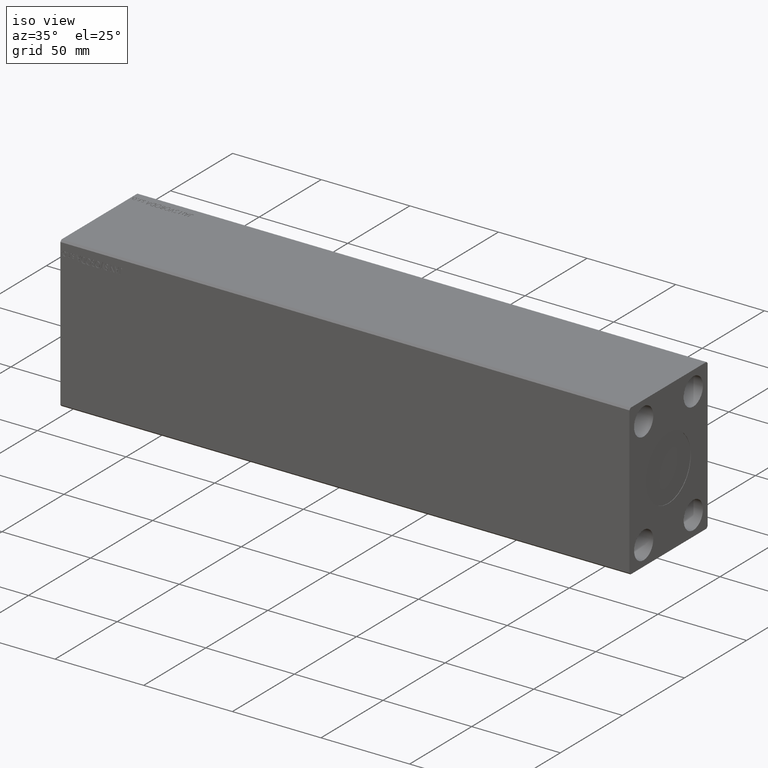
[diagram: clean part render]
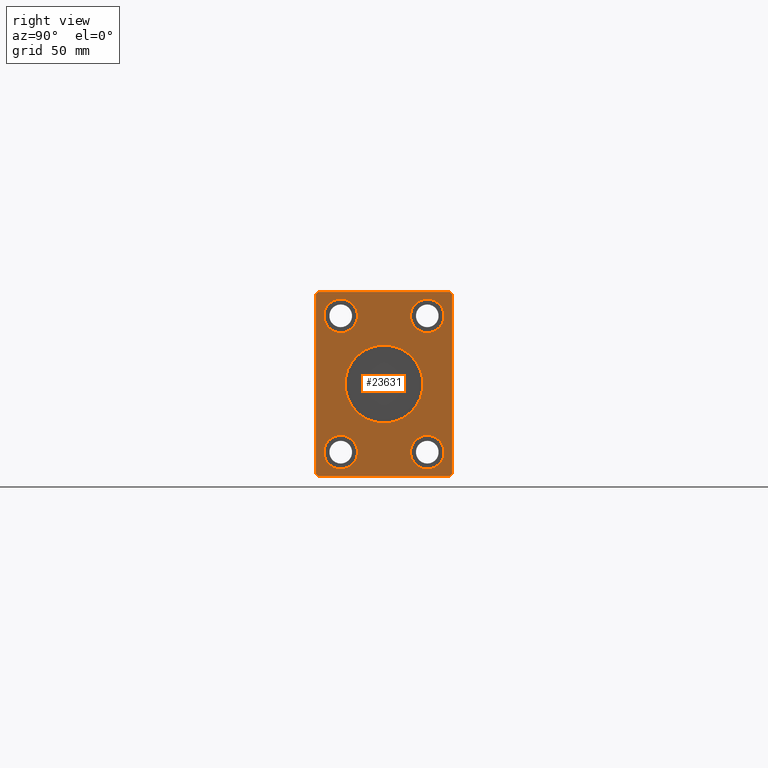
[diagram: tour spotlight — one face highlighted and labeled with its STEP entity id]
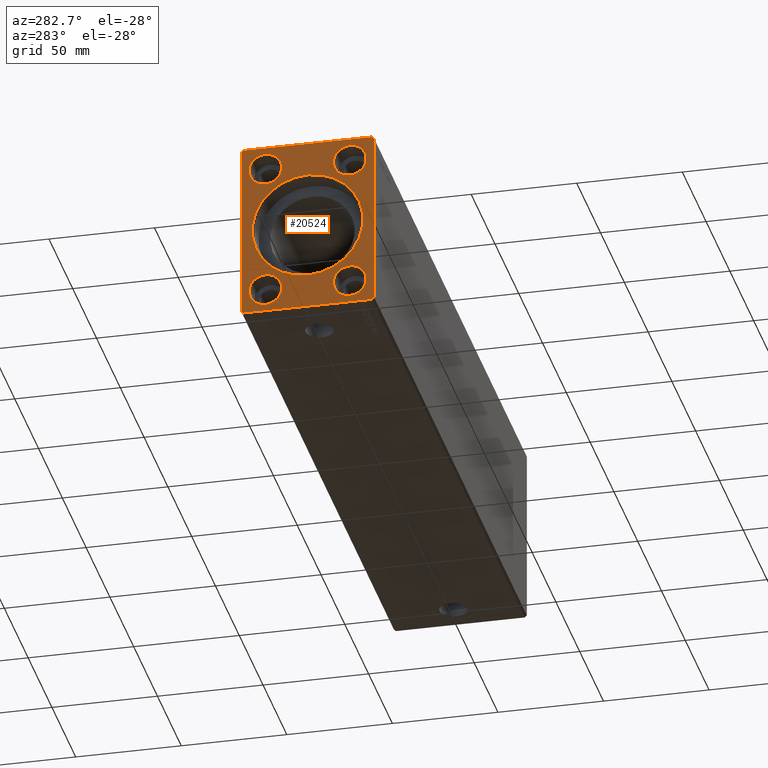
[diagram: tour spotlight — one face highlighted and labeled with its STEP entity id]
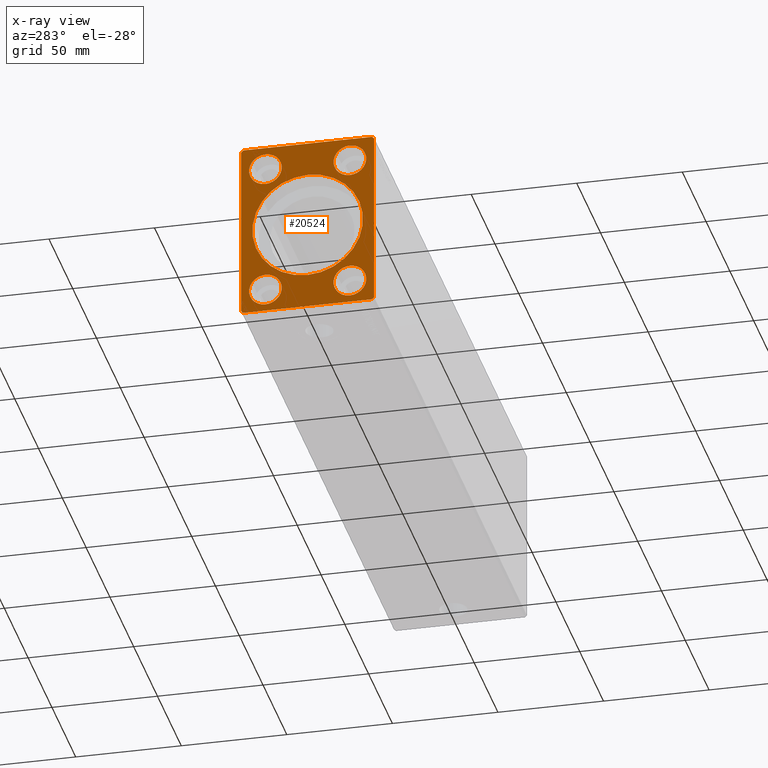
[diagram: x-ray of the same camera — body ghosted, this tour face saturated]
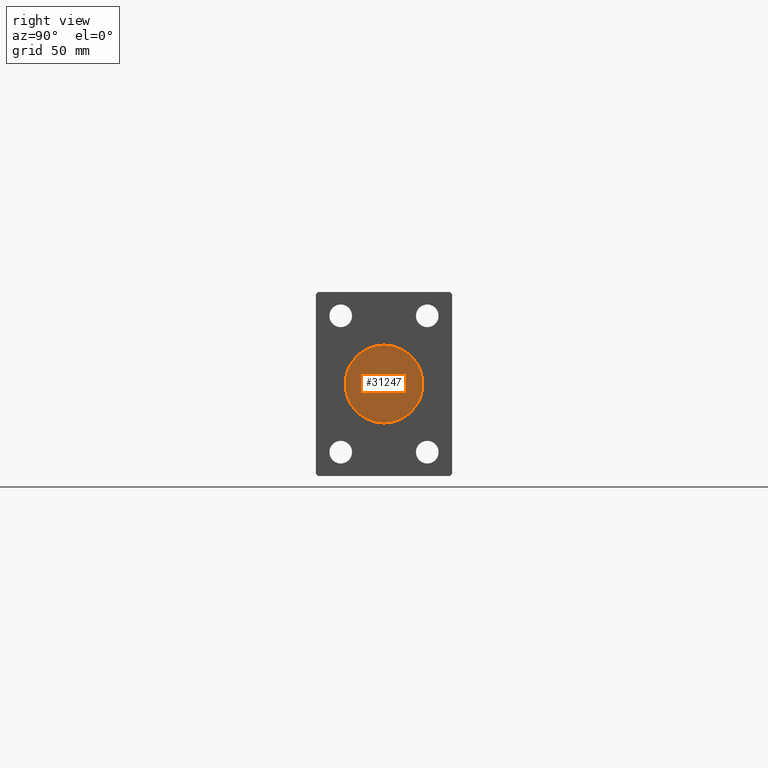
[diagram: tour spotlight — one face highlighted and labeled with its STEP entity id]
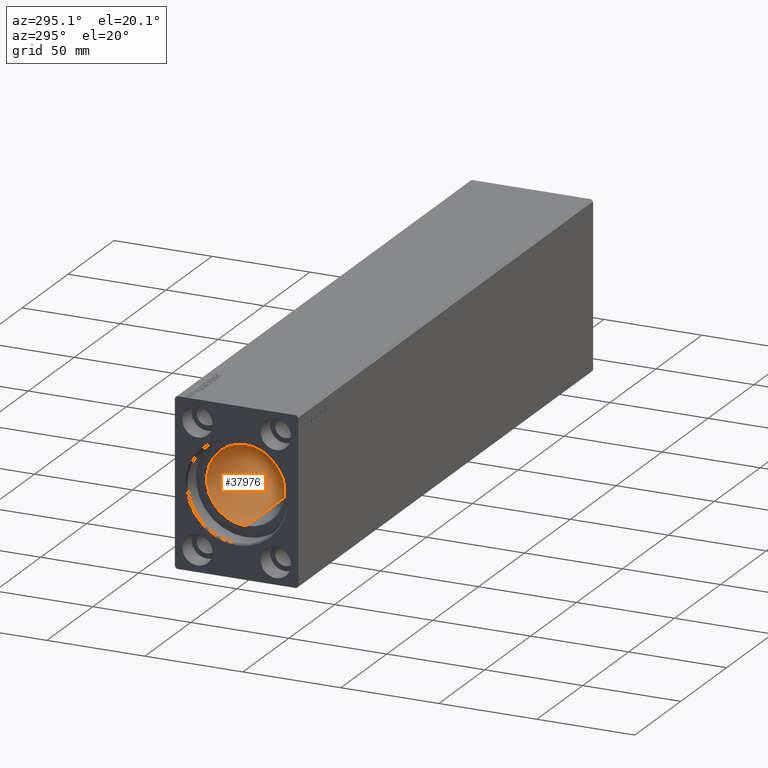
[diagram: tour spotlight — one face highlighted and labeled with its STEP entity id]
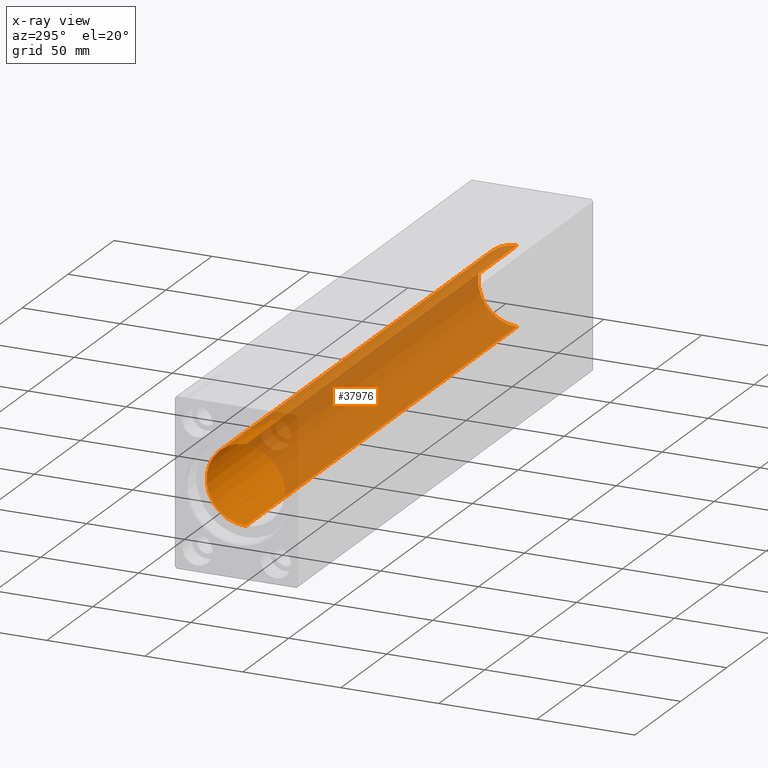
[diagram: x-ray of the same camera — body ghosted, this tour face saturated]
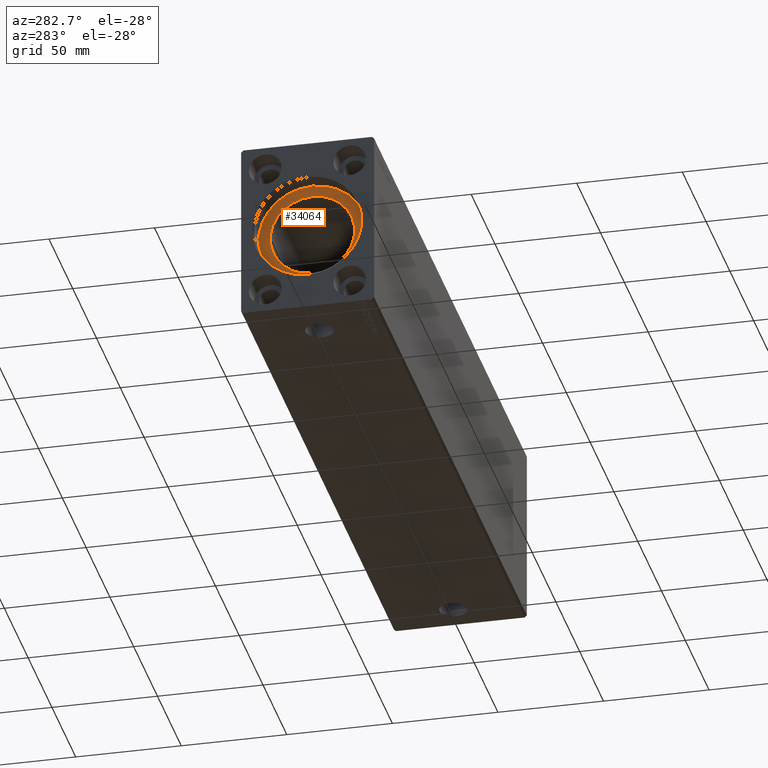
[diagram: tour spotlight — one face highlighted and labeled with its STEP entity id]
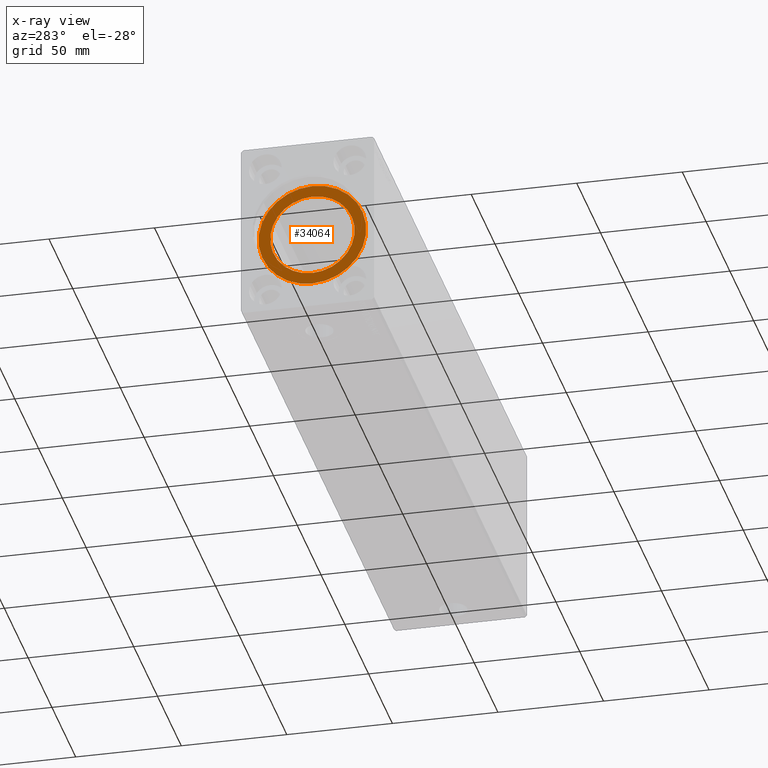
[diagram: x-ray of the same camera — body ghosted, this tour face saturated]
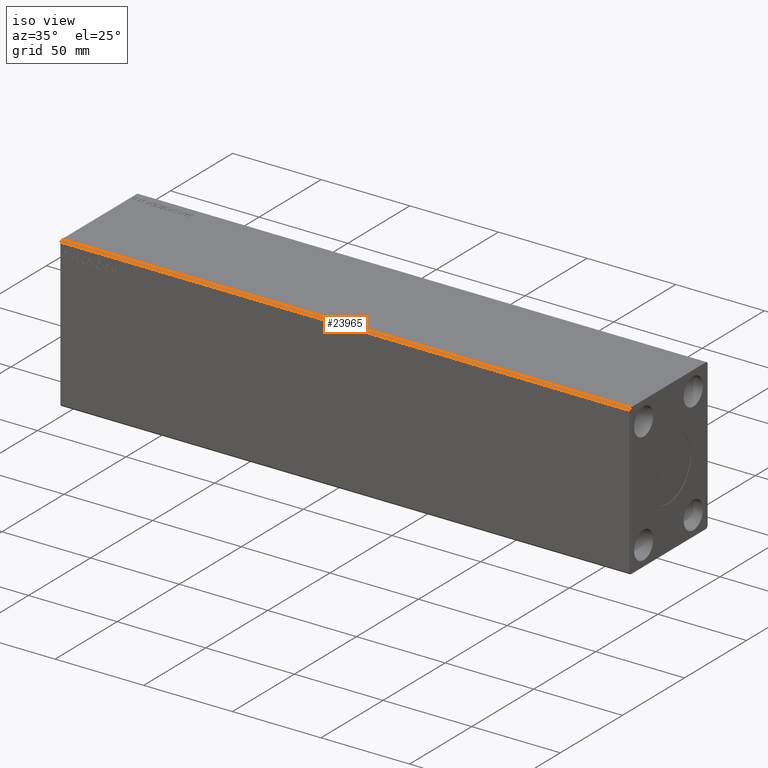
[diagram: tour spotlight — one face highlighted and labeled with its STEP entity id]
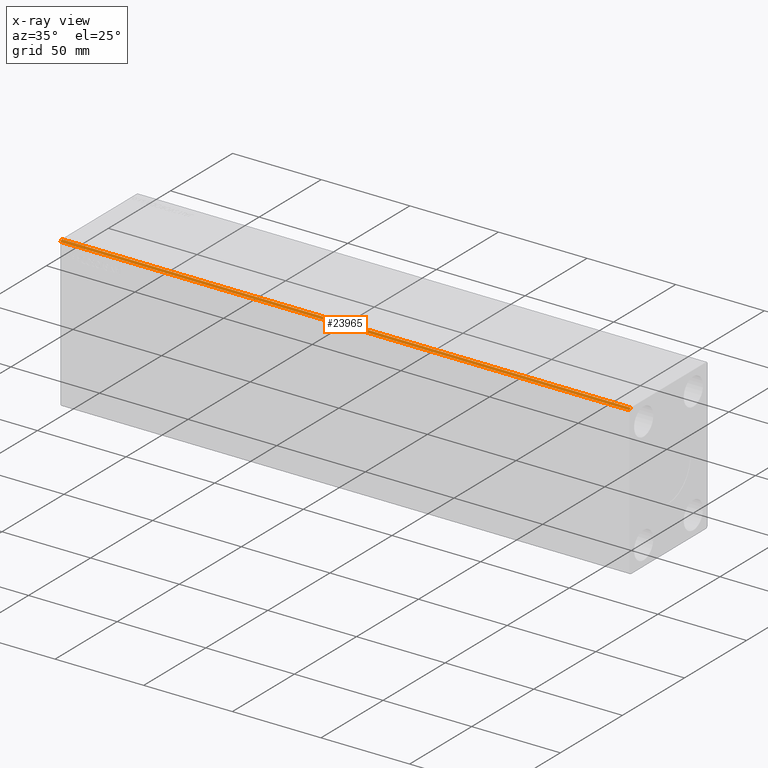
[diagram: x-ray of the same camera — body ghosted, this tour face saturated]
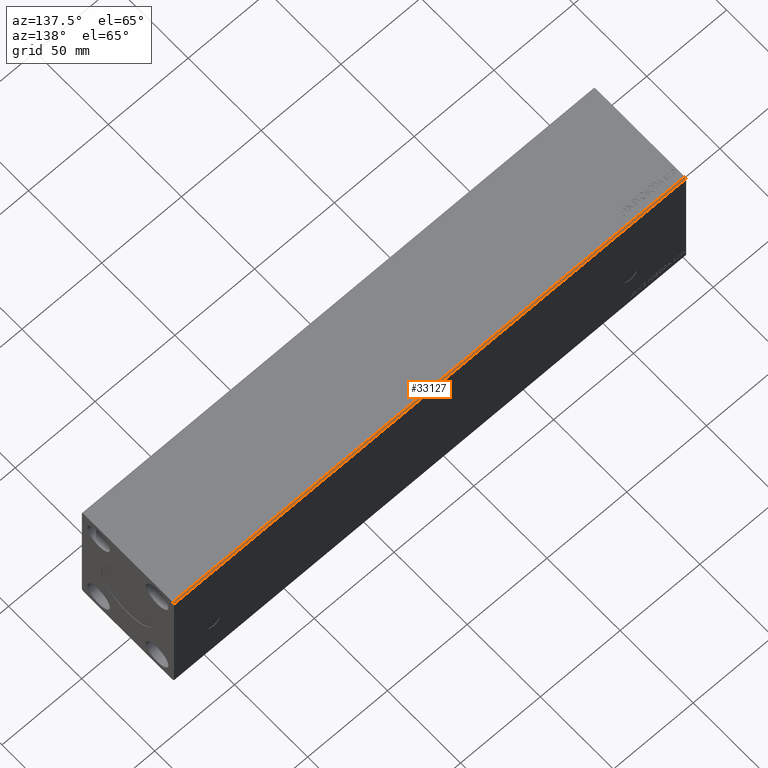
[diagram: tour spotlight — one face highlighted and labeled with its STEP entity id]
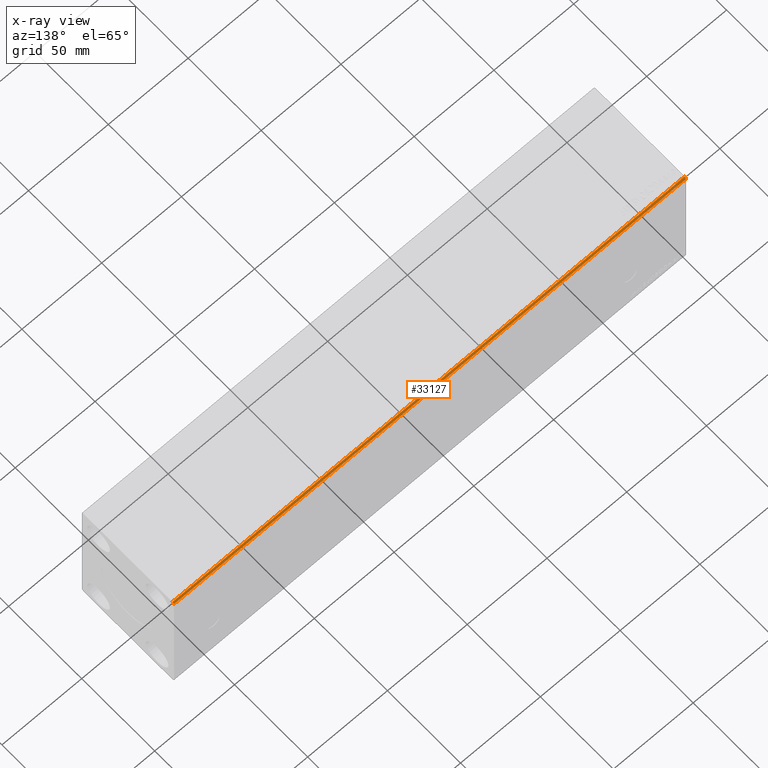
[diagram: x-ray of the same camera — body ghosted, this tour face saturated]
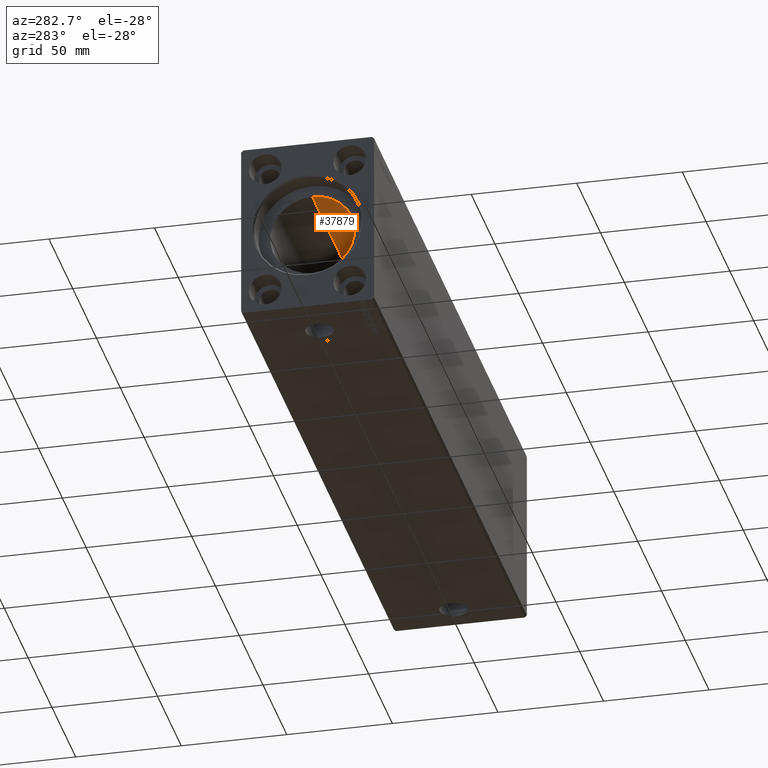
[diagram: tour spotlight — one face highlighted and labeled with its STEP entity id]
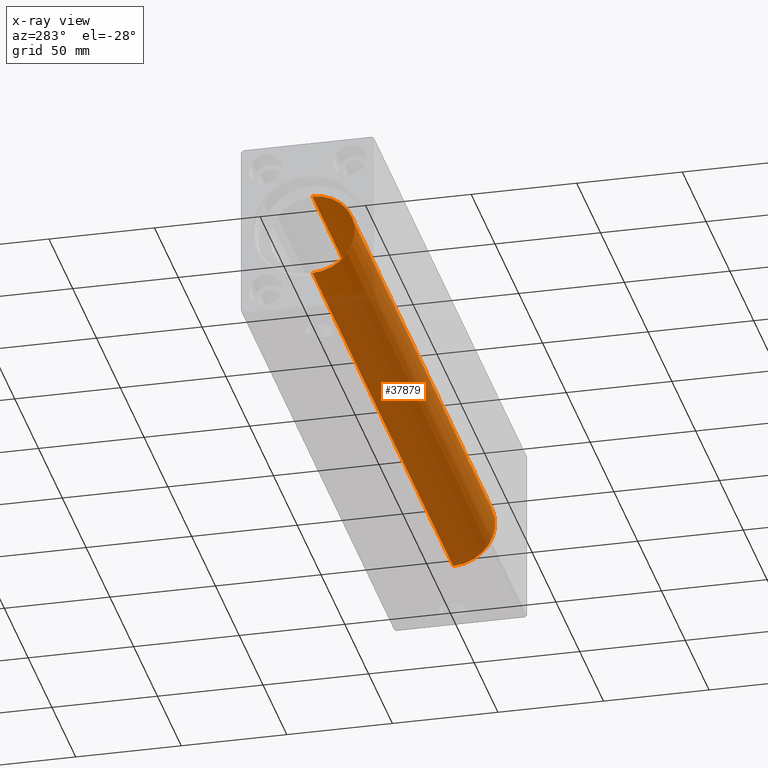
[diagram: x-ray of the same camera — body ghosted, this tour face saturated]
A machine part: a face-by-face anatomy tour. The part has 825 B-rep faces; the first image is the clean iso view, then the 8 largest visible faces are spotlighted one at a time (largest first), each with its STEP entity span.

Face 1 — right view, entity #23631. In plain terms, the highlighted planar face has unit normal (1, 0, 0).
Definition (entity closure, byte-faithful):
#28 = ORIENTED_EDGE ( 'NONE', *, *, #3727, .F. ) ;
#221 = EDGE_CURVE ( 'NONE', #4851, #5898, #8937, .T. ) ;
#446 = DIRECTION ( 'NONE',  ( 0.000000000000000000, 0.7071067811865451302, -0.7071067811865500152 ) ) ;
#844 = EDGE_CURVE ( 'NONE', #24156, #20195, #40246, .T. ) ;
#953 = CARTESIAN_POINT ( 'NONE',  ( 321.0000000000000000, 0.000000000000000000, -18.00000000000000000 ) ) ;
#961 = ORIENTED_EDGE ( 'NONE', *, *, #29365, .T. ) ;
#1335 = DIRECTION ( 'NONE',  ( 0.000000000000000000, 0.000000000000000000, -1.000000000000000000 ) ) ;
#1539 = CARTESIAN_POINT ( 'NONE',  ( 321.0000000000000000, -19.99999999999999645, -31.49999999999998579 ) ) ;
#1566 = CIRCLE ( 'NONE', #22800, 7.750000000000000000 ) ;
#1723 = VERTEX_POINT ( 'NONE', #953 ) ;
#1804 = CARTESIAN_POINT ( 'NONE',  ( 321.0000000000000000, -30.50000000000000711, -42.50000000000000711 ) ) ;
#2283 = CARTESIAN_POINT ( 'NONE',  ( 321.0000000000000000, 30.50000000000001421, 42.49999999999999289 ) ) ;
#2427 = VECTOR ( 'NONE', #2464, 999.9999999999998863 ) ;
#2464 = DIRECTION ( 'NONE',  ( 0.000000000000000000, 0.7071067811865462405, 0.7071067811865489050 ) ) ;
#2640 = VERTEX_POINT ( 'NONE', #1804 ) ;
#2803 = EDGE_CURVE ( 'NONE', #8829, #29970, #35858, .T. ) ;
#2902 = VECTOR ( 'NONE', #33378, 1000.000000000000000 ) ;
#3111 = DIRECTION ( 'NONE',  ( 1.000000000000000000, -0.000000000000000000, -0.000000000000000000 ) ) ;
#3552 = EDGE_LOOP ( 'NONE', ( #15627, #25297, #17738, #12483, #33447, #40973, #6226, #30654 ) ) ;
#3638 = CIRCLE ( 'NONE', #5725, 7.750000000000000000 ) ;
#3727 = EDGE_CURVE ( 'NONE', #28812, #14113, #3638, .T. ) ;
#3808 = EDGE_LOOP ( 'NONE', ( #28, #26344 ) ) ;
#4043 = ORIENTED_EDGE ( 'NONE', *, *, #14806, .F. ) ;
#4054 = CARTESIAN_POINT ( 'NONE',  ( 321.0000000000000000, 20.00000000000000355, 31.50000000000001421 ) ) ;
#4851 = VERTEX_POINT ( 'NONE', #39566 ) ;
#4966 = DIRECTION ( 'NONE',  ( 0.000000000000000000, 0.000000000000000000, 1.000000000000000000 ) ) ;
#5300 = DIRECTION ( 'NONE',  ( 0.000000000000000000, -1.000000000000000000, 0.000000000000000000 ) ) ;
#5725 = AXIS2_PLACEMENT_3D ( 'NONE', #9126, #3111, #29507 ) ;
#5898 = VERTEX_POINT ( 'NONE', #20257 ) ;
#6120 = VERTEX_POINT ( 'NONE', #25290 ) ;
#6226 = ORIENTED_EDGE ( 'NONE', *, *, #29675, .T. ) ;
#6628 = CARTESIAN_POINT ( 'NONE',  ( 321.0000000000000000, -31.50000000000000000, 41.49999999999999289 ) ) ;
#7351 = PLANE ( 'NONE',  #32724 ) ;
#7384 = CIRCLE ( 'NONE', #11469, 18.00000000000000000 ) ;
#7388 = CIRCLE ( 'NONE', #25190, 18.00000000000000000 ) ;
#7560 = FACE_BOUND ( 'NONE', #23418, .T. ) ;
#7675 = EDGE_CURVE ( 'NONE', #9991, #6120, #1566, .T. ) ;
#7728 = AXIS2_PLACEMENT_3D ( 'NONE', #4054, #17750, #13903 ) ;
#7921 = CARTESIAN_POINT ( 'NONE',  ( 321.0000000000000000, 31.50000000000001421, 41.49999999999999289 ) ) ;
#7943 = CARTESIAN_POINT ( 'NONE',  ( 321.0000000000000000, 31.50000000000001421, 41.49999999999999289 ) ) ;
#8103 = DIRECTION ( 'NONE',  ( -1.000000000000000000, -0.000000000000000000, -0.000000000000000000 ) ) ;
#8215 = EDGE_CURVE ( 'NONE', #14113, #28812, #14577, .T. ) ;
#8267 = DIRECTION ( 'NONE',  ( -1.000000000000000000, -0.000000000000000000, -0.000000000000000000 ) ) ;
#8301 = DIRECTION ( 'NONE',  ( -1.000000000000000000, -0.000000000000000000, -0.000000000000000000 ) ) ;
#8337 = LINE ( 'NONE', #7921, #19513 ) ;
#8829 = VERTEX_POINT ( 'NONE', #24978 ) ;
#8937 = LINE ( 'NONE', #2283, #11098 ) ;
#9086 = CARTESIAN_POINT ( 'NONE',  ( 321.0000000000000000, -30.50000000000000355, 42.49999999999999289 ) ) ;
#9126 = CARTESIAN_POINT ( 'NONE',  ( 321.0000000000000000, 20.00000000000000355, 31.50000000000001421 ) ) ;
#9291 = EDGE_CURVE ( 'NONE', #19622, #10353, #39313, .T. ) ;
#9951 = AXIS2_PLACEMENT_3D ( 'NONE', #20554, #8301, #21386 ) ;
#9991 = VERTEX_POINT ( 'NONE', #13791 ) ;
#10353 = VERTEX_POINT ( 'NONE', #18439 ) ;
#10552 = FACE_BOUND ( 'NONE', #38546, .T. ) ;
#11098 = VECTOR ( 'NONE', #5300, 1000.000000000000000 ) ;
#11185 = DIRECTION ( 'NONE',  ( 1.000000000000000000, 0.000000000000000000, 0.000000000000000000 ) ) ;
#11469 = AXIS2_PLACEMENT_3D ( 'NONE', #38428, #31543, #15205 ) ;
#11945 = DIRECTION ( 'NONE',  ( 1.000000000000000000, 0.000000000000000000, 0.000000000000000000 ) ) ;
#12131 = EDGE_CURVE ( 'NONE', #20195, #2640, #29849, .T. ) ;
#12483 = ORIENTED_EDGE ( 'NONE', *, *, #844, .T. ) ;
#13469 = CARTESIAN_POINT ( 'NONE',  ( 321.0000000000000000, 30.50000000000001776, -42.50000000000000711 ) ) ;
#13791 = CARTESIAN_POINT ( 'NONE',  ( 321.0000000000000000, 20.00000000000000355, -23.74999999999998579 ) ) ;
#13903 = DIRECTION ( 'NONE',  ( 0.000000000000000000, 0.000000000000000000, -1.000000000000000000 ) ) ;
#14113 = VERTEX_POINT ( 'NONE', #17352 ) ;
#14209 = FACE_BOUND ( 'NONE', #3808, .T. ) ;
#14577 = CIRCLE ( 'NONE', #7728, 7.750000000000000000 ) ;
#14612 = FACE_BOUND ( 'NONE', #37211, .T. ) ;
#14622 = DIRECTION ( 'NONE',  ( 1.000000000000000000, -0.000000000000000000, -0.000000000000000000 ) ) ;
#14806 = EDGE_CURVE ( 'NONE', #29970, #8829, #28480, .T. ) ;
#15205 = DIRECTION ( 'NONE',  ( 0.000000000000000000, 0.000000000000000000, -1.000000000000000000 ) ) ;
#15301 = LINE ( 'NONE', #9086, #37526 ) ;
#15575 = AXIS2_PLACEMENT_3D ( 'NONE', #24576, #8267, #21348 ) ;
#15627 = ORIENTED_EDGE ( 'NONE', *, *, #28230, .T. ) ;
#16076 = EDGE_CURVE ( 'NONE', #37052, #32163, #34820, .T. ) ;
#16614 = AXIS2_PLACEMENT_3D ( 'NONE', #1539, #14622, #1335 ) ;
#17352 = CARTESIAN_POINT ( 'NONE',  ( 321.0000000000000000, 20.00000000000000355, 39.25000000000001421 ) ) ;
#17362 = DIRECTION ( 'NONE',  ( 0.000000000000000000, -0.7071067811865474617, 0.7071067811865474617 ) ) ;
#17738 = ORIENTED_EDGE ( 'NONE', *, *, #26295, .T. ) ;
#17750 = DIRECTION ( 'NONE',  ( 1.000000000000000000, -0.000000000000000000, -0.000000000000000000 ) ) ;
#17934 = CARTESIAN_POINT ( 'NONE',  ( 321.0000000000000000, -30.50000000000000711, -42.50000000000000711 ) ) ;
#18439 = CARTESIAN_POINT ( 'NONE',  ( 321.0000000000000000, -19.99999999999999645, 23.75000000000001421 ) ) ;
#18762 = LINE ( 'NONE', #31875, #2427 ) ;
#18806 = DIRECTION ( 'NONE',  ( 0.000000000000000000, 1.000000000000000000, 0.000000000000000000 ) ) ;
#19513 = VECTOR ( 'NONE', #17362, 1000.000000000000114 ) ;
#19622 = VERTEX_POINT ( 'NONE', #40279 ) ;
#20157 = DIRECTION ( 'NONE',  ( 1.000000000000000000, -0.000000000000000000, -0.000000000000000000 ) ) ;
#20195 = VERTEX_POINT ( 'NONE', #23524 ) ;
#20253 = VECTOR ( 'NONE', #4966, 1000.000000000000000 ) ;
#20257 = CARTESIAN_POINT ( 'NONE',  ( 321.0000000000000000, -30.50000000000000355, 42.49999999999999289 ) ) ;
#20262 = EDGE_CURVE ( 'NONE', #6120, #9991, #29988, .T. ) ;
#20554 = CARTESIAN_POINT ( 'NONE',  ( 321.0000000000000000, -19.99999999999999645, 31.50000000000001421 ) ) ;
#20640 = CARTESIAN_POINT ( 'NONE',  ( 321.0000000000000000, 0.000000000000000000, 0.000000000000000000 ) ) ;
#21184 = DIRECTION ( 'NONE',  ( 0.000000000000000000, 0.000000000000000000, 1.000000000000000000 ) ) ;
#21267 = ORIENTED_EDGE ( 'NONE', *, *, #7675, .T. ) ;
#21348 = DIRECTION ( 'NONE',  ( 0.000000000000000000, 0.000000000000000000, 1.000000000000000000 ) ) ;
#21386 = DIRECTION ( 'NONE',  ( 0.000000000000000000, 0.000000000000000000, 1.000000000000000000 ) ) ;
#22800 = AXIS2_PLACEMENT_3D ( 'NONE', #41164, #8103, #21184 ) ;
#23363 = VERTEX_POINT ( 'NONE', #13469 ) ;
#23418 = EDGE_LOOP ( 'NONE', ( #961, #27312 ) ) ;
#23524 = CARTESIAN_POINT ( 'NONE',  ( 321.0000000000000000, -31.50000000000000000, -41.50000000000000711 ) ) ;
#23595 = VECTOR ( 'NONE', #446, 1000.000000000000114 ) ;
#23631 = ADVANCED_FACE ( 'NONE', ( #39988, #7560, #10552, #34180, #14612, #14209 ), #7351, .T. ) ;
#24156 = VERTEX_POINT ( 'NONE', #6628 ) ;
#24343 = EDGE_CURVE ( 'NONE', #2640, #23363, #37931, .T. ) ;
#24576 = CARTESIAN_POINT ( 'NONE',  ( 321.0000000000000000, 20.00000000000000355, -31.49999999999998579 ) ) ;
#24833 = DIRECTION ( 'NONE',  ( 0.000000000000000000, 0.000000000000000000, -1.000000000000000000 ) ) ;
#24978 = CARTESIAN_POINT ( 'NONE',  ( 321.0000000000000000, -19.99999999999999645, -23.74999999999998579 ) ) ;
#25190 = AXIS2_PLACEMENT_3D ( 'NONE', #31506, #11945, #24833 ) ;
#25290 = CARTESIAN_POINT ( 'NONE',  ( 321.0000000000000000, 20.00000000000000355, -39.24999999999998579 ) ) ;
#25297 = ORIENTED_EDGE ( 'NONE', *, *, #221, .T. ) ;
#25613 = CARTESIAN_POINT ( 'NONE',  ( 321.0000000000000000, -19.99999999999999645, -31.49999999999998579 ) ) ;
#25790 = CARTESIAN_POINT ( 'NONE',  ( 321.0000000000000000, -19.99999999999999645, 31.50000000000001421 ) ) ;
#26047 = CARTESIAN_POINT ( 'NONE',  ( 321.0000000000000000, -19.99999999999999645, -39.24999999999998579 ) ) ;
#26216 = CARTESIAN_POINT ( 'NONE',  ( 321.0000000000000000, -31.50000000000000000, -41.50000000000000711 ) ) ;
#26295 = EDGE_CURVE ( 'NONE', #5898, #24156, #15301, .T. ) ;
#26344 = ORIENTED_EDGE ( 'NONE', *, *, #8215, .F. ) ;
#27312 = ORIENTED_EDGE ( 'NONE', *, *, #9291, .T. ) ;
#27349 = CARTESIAN_POINT ( 'NONE',  ( 321.0000000000000000, -31.50000000000000000, 41.49999999999999289 ) ) ;
#27707 = ORIENTED_EDGE ( 'NONE', *, *, #2803, .F. ) ;
#27810 = EDGE_LOOP ( 'NONE', ( #31434, #28089 ) ) ;
#28089 = ORIENTED_EDGE ( 'NONE', *, *, #36384, .F. ) ;
#28225 = VERTEX_POINT ( 'NONE', #40992 ) ;
#28230 = EDGE_CURVE ( 'NONE', #32163, #4851, #8337, .T. ) ;
#28480 = CIRCLE ( 'NONE', #33265, 7.750000000000000000 ) ;
#28812 = VERTEX_POINT ( 'NONE', #30586 ) ;
#29365 = EDGE_CURVE ( 'NONE', #10353, #19622, #32590, .T. ) ;
#29507 = DIRECTION ( 'NONE',  ( 0.000000000000000000, 0.000000000000000000, -1.000000000000000000 ) ) ;
#29675 = EDGE_CURVE ( 'NONE', #23363, #37052, #18762, .T. ) ;
#29849 = LINE ( 'NONE', #26216, #23595 ) ;
#29970 = VERTEX_POINT ( 'NONE', #26047 ) ;
#29988 = CIRCLE ( 'NONE', #15575, 7.750000000000000000 ) ;
#30586 = CARTESIAN_POINT ( 'NONE',  ( 321.0000000000000000, 20.00000000000000355, 23.75000000000001421 ) ) ;
#30654 = ORIENTED_EDGE ( 'NONE', *, *, #16076, .T. ) ;
#31349 = CARTESIAN_POINT ( 'NONE',  ( 321.0000000000000000, 31.50000000000001421, -41.50000000000000711 ) ) ;
#31434 = ORIENTED_EDGE ( 'NONE', *, *, #40983, .F. ) ;
#31506 = CARTESIAN_POINT ( 'NONE',  ( 321.0000000000000000, 0.000000000000000000, 0.000000000000000000 ) ) ;
#31543 = DIRECTION ( 'NONE',  ( 1.000000000000000000, 0.000000000000000000, 0.000000000000000000 ) ) ;
#31875 = CARTESIAN_POINT ( 'NONE',  ( 321.0000000000000000, 30.50000000000001776, -42.50000000000000711 ) ) ;
#32163 = VERTEX_POINT ( 'NONE', #7943 ) ;
#32223 = ORIENTED_EDGE ( 'NONE', *, *, #20262, .T. ) ;
#32590 = CIRCLE ( 'NONE', #9951, 7.750000000000000000 ) ;
#32724 = AXIS2_PLACEMENT_3D ( 'NONE', #20640, #11185, #33547 ) ;
#33265 = AXIS2_PLACEMENT_3D ( 'NONE', #25613, #20157, #42158 ) ;
#33378 = DIRECTION ( 'NONE',  ( 0.000000000000000000, 0.000000000000000000, -1.000000000000000000 ) ) ;
#33447 = ORIENTED_EDGE ( 'NONE', *, *, #12131, .T. ) ;
#33547 = DIRECTION ( 'NONE',  ( 0.000000000000000000, 0.000000000000000000, -1.000000000000000000 ) ) ;
#34180 = FACE_OUTER_BOUND ( 'NONE', #3552, .T. ) ;
#34596 = CARTESIAN_POINT ( 'NONE',  ( 321.0000000000000000, 31.50000000000001421, -41.50000000000000711 ) ) ;
#34820 = LINE ( 'NONE', #34596, #20253 ) ;
#35253 = DIRECTION ( 'NONE',  ( 0.000000000000000000, 0.000000000000000000, 1.000000000000000000 ) ) ;
#35468 = DIRECTION ( 'NONE',  ( -1.000000000000000000, -0.000000000000000000, -0.000000000000000000 ) ) ;
#35858 = CIRCLE ( 'NONE', #16614, 7.750000000000000000 ) ;
#36384 = EDGE_CURVE ( 'NONE', #28225, #1723, #7388, .T. ) ;
#37052 = VERTEX_POINT ( 'NONE', #31349 ) ;
#37211 = EDGE_LOOP ( 'NONE', ( #4043, #27707 ) ) ;
#37526 = VECTOR ( 'NONE', #38952, 999.9999999999998863 ) ;
#37931 = LINE ( 'NONE', #17934, #38208 ) ;
#38208 = VECTOR ( 'NONE', #18806, 1000.000000000000000 ) ;
#38428 = CARTESIAN_POINT ( 'NONE',  ( 321.0000000000000000, 0.000000000000000000, 0.000000000000000000 ) ) ;
#38546 = EDGE_LOOP ( 'NONE', ( #32223, #21267 ) ) ;
#38952 = DIRECTION ( 'NONE',  ( 0.000000000000000000, -0.7071067811865462405, -0.7071067811865489050 ) ) ;
#39313 = CIRCLE ( 'NONE', #40676, 7.750000000000000000 ) ;
#39566 = CARTESIAN_POINT ( 'NONE',  ( 321.0000000000000000, 30.50000000000001421, 42.49999999999999289 ) ) ;
#39988 = FACE_BOUND ( 'NONE', #27810, .T. ) ;
#40246 = LINE ( 'NONE', #27349, #2902 ) ;
#40279 = CARTESIAN_POINT ( 'NONE',  ( 321.0000000000000000, -19.99999999999999645, 39.25000000000001421 ) ) ;
#40676 = AXIS2_PLACEMENT_3D ( 'NONE', #25790, #35468, #35253 ) ;
#40973 = ORIENTED_EDGE ( 'NONE', *, *, #24343, .T. ) ;
#40983 = EDGE_CURVE ( 'NONE', #1723, #28225, #7384, .T. ) ;
#40992 = CARTESIAN_POINT ( 'NONE',  ( 321.0000000000000000, 2.204364238465235428E-15, 18.00000000000000000 ) ) ;
#41164 = CARTESIAN_POINT ( 'NONE',  ( 321.0000000000000000, 20.00000000000000355, -31.49999999999998579 ) ) ;
#42158 = DIRECTION ( 'NONE',  ( 0.000000000000000000, 0.000000000000000000, -1.000000000000000000 ) ) ;

Face 2 — auxiliary view, entity #20524. An x-ray twin of the same camera follows (body ghosted, this face saturated) — the face is partly hidden behind the body. In plain terms, the highlighted planar face has unit normal (1, 0, 0).
Definition (entity closure, byte-faithful):
#312 = EDGE_CURVE ( 'NONE', #23866, #41269, #22866, .T. ) ;
#319 = VERTEX_POINT ( 'NONE', #42221 ) ;
#353 = VECTOR ( 'NONE', #21364, 1000.000000000000000 ) ;
#370 = ORIENTED_EDGE ( 'NONE', *, *, #39969, .F. ) ;
#589 = VERTEX_POINT ( 'NONE', #18675 ) ;
#1538 = ORIENTED_EDGE ( 'NONE', *, *, #19213, .F. ) ;
#1554 = ORIENTED_EDGE ( 'NONE', *, *, #36155, .F. ) ;
#1727 = CARTESIAN_POINT ( 'NONE',  ( 0.000000000000000000, -30.50000000000000355, 42.49999999999999289 ) ) ;
#1813 = VECTOR ( 'NONE', #41238, 999.9999999999998863 ) ;
#2063 = CARTESIAN_POINT ( 'NONE',  ( 0.000000000000000000, -19.99999999999999645, -31.49999999999998579 ) ) ;
#2257 = CIRCLE ( 'NONE', #26245, 7.750000000000000000 ) ;
#2586 = AXIS2_PLACEMENT_3D ( 'NONE', #38393, #3157, #26123 ) ;
#2666 = EDGE_CURVE ( 'NONE', #10316, #11249, #36521, .T. ) ;
#2913 = DIRECTION ( 'NONE',  ( 1.000000000000000000, -0.000000000000000000, -0.000000000000000000 ) ) ;
#2927 = CARTESIAN_POINT ( 'NONE',  ( 0.000000000000000000, 20.00000000000000355, 23.75000000000001421 ) ) ;
#3157 = DIRECTION ( 'NONE',  ( 1.000000000000000000, 0.000000000000000000, 0.000000000000000000 ) ) ;
#3305 = DIRECTION ( 'NONE',  ( 0.000000000000000000, 0.000000000000000000, 1.000000000000000000 ) ) ;
#3502 = VERTEX_POINT ( 'NONE', #6600 ) ;
#3613 = CARTESIAN_POINT ( 'NONE',  ( 0.000000000000000000, 31.50000000000001421, 41.49999999999999289 ) ) ;
#3617 = VERTEX_POINT ( 'NONE', #37483 ) ;
#3827 = LINE ( 'NONE', #3613, #22455 ) ;
#4238 = CARTESIAN_POINT ( 'NONE',  ( 0.000000000000000000, -31.50000000000000000, -41.50000000000000711 ) ) ;
#4248 = CARTESIAN_POINT ( 'NONE',  ( 0.000000000000000000, 30.50000000000001776, -42.50000000000000711 ) ) ;
#4526 = CARTESIAN_POINT ( 'NONE',  ( 0.000000000000000000, -19.99999999999999645, -31.49999999999998579 ) ) ;
#5228 = DIRECTION ( 'NONE',  ( -1.000000000000000000, 0.000000000000000000, 0.000000000000000000 ) ) ;
#5320 = AXIS2_PLACEMENT_3D ( 'NONE', #41294, #5228, #28835 ) ;
#5377 = EDGE_LOOP ( 'NONE', ( #35176, #31794, #32860, #22906, #39319, #16092, #1538, #1554 ) ) ;
#5494 = DIRECTION ( 'NONE',  ( 0.000000000000000000, 0.7071067811865462405, 0.7071067811865489050 ) ) ;
#5506 = CARTESIAN_POINT ( 'NONE',  ( 0.000000000000000000, 20.00000000000000355, 31.50000000000001421 ) ) ;
#5715 = DIRECTION ( 'NONE',  ( 1.000000000000000000, -0.000000000000000000, -0.000000000000000000 ) ) ;
#5930 = DIRECTION ( 'NONE',  ( 0.000000000000000000, 0.000000000000000000, -1.000000000000000000 ) ) ;
#6012 = DIRECTION ( 'NONE',  ( 0.000000000000000000, 0.000000000000000000, -1.000000000000000000 ) ) ;
#6086 = DIRECTION ( 'NONE',  ( -1.000000000000000000, 0.000000000000000000, 0.000000000000000000 ) ) ;
#6151 = CARTESIAN_POINT ( 'NONE',  ( 0.000000000000000000, -30.50000000000000711, -42.50000000000000711 ) ) ;
#6427 = DIRECTION ( 'NONE',  ( 1.000000000000000000, -0.000000000000000000, -0.000000000000000000 ) ) ;
#6600 = CARTESIAN_POINT ( 'NONE',  ( 0.000000000000000000, 20.00000000000000355, -39.24999999999998579 ) ) ;
#6693 = CIRCLE ( 'NONE', #2586, 26.19999999999997442 ) ;
#6831 = EDGE_CURVE ( 'NONE', #38320, #12319, #37095, .T. ) ;
#6906 = ORIENTED_EDGE ( 'NONE', *, *, #17796, .T. ) ;
#6982 = DIRECTION ( 'NONE',  ( -1.000000000000000000, 0.000000000000000000, 0.000000000000000000 ) ) ;
#7108 = VERTEX_POINT ( 'NONE', #2927 ) ;
#7793 = FACE_BOUND ( 'NONE', #36574, .T. ) ;
#8008 = FACE_OUTER_BOUND ( 'NONE', #5377, .T. ) ;
#8062 = CARTESIAN_POINT ( 'NONE',  ( 0.000000000000000000, 0.000000000000000000, 0.000000000000000000 ) ) ;
#8171 = EDGE_CURVE ( 'NONE', #7108, #589, #2257, .T. ) ;
#8220 = PLANE ( 'NONE',  #32727 ) ;
#8582 = DIRECTION ( 'NONE',  ( 0.000000000000000000, 0.000000000000000000, -1.000000000000000000 ) ) ;
#8698 = CIRCLE ( 'NONE', #19663, 7.750000000000000000 ) ;
#9847 = CARTESIAN_POINT ( 'NONE',  ( 0.000000000000000000, 20.00000000000000355, 31.50000000000001421 ) ) ;
#10316 = VERTEX_POINT ( 'NONE', #40159 ) ;
#10724 = ORIENTED_EDGE ( 'NONE', *, *, #28640, .F. ) ;
#11010 = FACE_BOUND ( 'NONE', #26737, .T. ) ;
#11249 = VERTEX_POINT ( 'NONE', #34283 ) ;
#12120 = DIRECTION ( 'NONE',  ( 0.000000000000000000, 0.000000000000000000, -1.000000000000000000 ) ) ;
#12182 = CARTESIAN_POINT ( 'NONE',  ( 0.000000000000000000, 0.000000000000000000, 26.19999999999997442 ) ) ;
#12319 = VERTEX_POINT ( 'NONE', #32353 ) ;
#13335 = CIRCLE ( 'NONE', #37342, 7.750000000000000000 ) ;
#13969 = EDGE_CURVE ( 'NONE', #25944, #39021, #13335, .T. ) ;
#14259 = CARTESIAN_POINT ( 'NONE',  ( 0.000000000000000000, -31.50000000000000000, -41.50000000000000711 ) ) ;
#14414 = EDGE_CURVE ( 'NONE', #16639, #28505, #38564, .T. ) ;
#14460 = EDGE_CURVE ( 'NONE', #39021, #25944, #21604, .T. ) ;
#14470 = CARTESIAN_POINT ( 'NONE',  ( 0.000000000000000000, 30.50000000000001421, 42.49999999999999289 ) ) ;
#15232 = VECTOR ( 'NONE', #29327, 1000.000000000000000 ) ;
#15550 = EDGE_CURVE ( 'NONE', #28505, #23866, #40253, .T. ) ;
#15563 = DIRECTION ( 'NONE',  ( 1.000000000000000000, 0.000000000000000000, 0.000000000000000000 ) ) ;
#16080 = CIRCLE ( 'NONE', #21561, 7.750000000000000000 ) ;
#16092 = ORIENTED_EDGE ( 'NONE', *, *, #14414, .F. ) ;
#16366 = CARTESIAN_POINT ( 'NONE',  ( 0.000000000000000000, 3.208574613766062144E-15, -26.19999999999997442 ) ) ;
#16639 = VERTEX_POINT ( 'NONE', #39586 ) ;
#17318 = CARTESIAN_POINT ( 'NONE',  ( 0.000000000000000000, 31.50000000000001421, -41.50000000000000711 ) ) ;
#17492 = AXIS2_PLACEMENT_3D ( 'NONE', #2063, #5715, #38359 ) ;
#17796 = EDGE_CURVE ( 'NONE', #37305, #19158, #18216, .T. ) ;
#17908 = LINE ( 'NONE', #25010, #25833 ) ;
#17971 = AXIS2_PLACEMENT_3D ( 'NONE', #39583, #22619, #3305 ) ;
#18216 = CIRCLE ( 'NONE', #42263, 26.19999999999997442 ) ;
#18675 = CARTESIAN_POINT ( 'NONE',  ( 0.000000000000000000, 20.00000000000000355, 39.25000000000001421 ) ) ;
#18846 = ORIENTED_EDGE ( 'NONE', *, *, #26012, .T. ) ;
#19158 = VERTEX_POINT ( 'NONE', #16366 ) ;
#19163 = DIRECTION ( 'NONE',  ( 0.000000000000000000, 0.000000000000000000, 1.000000000000000000 ) ) ;
#19213 = EDGE_CURVE ( 'NONE', #319, #16639, #34572, .T. ) ;
#19292 = DIRECTION ( 'NONE',  ( 0.000000000000000000, -1.000000000000000000, 0.000000000000000000 ) ) ;
#19372 = VECTOR ( 'NONE', #33452, 1000.000000000000000 ) ;
#19578 = VECTOR ( 'NONE', #34014, 1000.000000000000114 ) ;
#19663 = AXIS2_PLACEMENT_3D ( 'NONE', #38949, #6086, #19163 ) ;
#20524 = ADVANCED_FACE ( 'NONE', ( #40441, #7793, #24311, #8008, #11010, #24529 ), #8220, .F. ) ;
#21302 = DIRECTION ( 'NONE',  ( 0.000000000000000000, 0.000000000000000000, -1.000000000000000000 ) ) ;
#21364 = DIRECTION ( 'NONE',  ( 0.000000000000000000, 0.000000000000000000, -1.000000000000000000 ) ) ;
#21561 = AXIS2_PLACEMENT_3D ( 'NONE', #25682, #6982, #36401 ) ;
#21604 = CIRCLE ( 'NONE', #17492, 7.750000000000000000 ) ;
#22431 = EDGE_LOOP ( 'NONE', ( #40587, #39098 ) ) ;
#22455 = VECTOR ( 'NONE', #32828, 1000.000000000000114 ) ;
#22484 = ORIENTED_EDGE ( 'NONE', *, *, #13969, .T. ) ;
#22619 = DIRECTION ( 'NONE',  ( -1.000000000000000000, 0.000000000000000000, 0.000000000000000000 ) ) ;
#22866 = LINE ( 'NONE', #6151, #15232 ) ;
#22906 = ORIENTED_EDGE ( 'NONE', *, *, #312, .F. ) ;
#23102 = VECTOR ( 'NONE', #19292, 1000.000000000000000 ) ;
#23866 = VERTEX_POINT ( 'NONE', #26201 ) ;
#24311 = FACE_BOUND ( 'NONE', #34597, .T. ) ;
#24378 = CARTESIAN_POINT ( 'NONE',  ( 0.000000000000000000, -19.99999999999999645, -39.24999999999998579 ) ) ;
#24524 = VERTEX_POINT ( 'NONE', #14470 ) ;
#24529 = FACE_BOUND ( 'NONE', #26113, .T. ) ;
#25010 = CARTESIAN_POINT ( 'NONE',  ( 0.000000000000000000, 30.50000000000001776, -42.50000000000000711 ) ) ;
#25540 = EDGE_CURVE ( 'NONE', #11249, #10316, #27921, .T. ) ;
#25682 = CARTESIAN_POINT ( 'NONE',  ( 0.000000000000000000, 20.00000000000000355, -31.49999999999998579 ) ) ;
#25833 = VECTOR ( 'NONE', #5494, 999.9999999999998863 ) ;
#25944 = VERTEX_POINT ( 'NONE', #24378 ) ;
#26012 = EDGE_CURVE ( 'NONE', #589, #7108, #41680, .T. ) ;
#26113 = EDGE_LOOP ( 'NONE', ( #18846, #32326 ) ) ;
#26123 = DIRECTION ( 'NONE',  ( 0.000000000000000000, 0.000000000000000000, -1.000000000000000000 ) ) ;
#26201 = CARTESIAN_POINT ( 'NONE',  ( 0.000000000000000000, -30.50000000000000711, -42.50000000000000711 ) ) ;
#26245 = AXIS2_PLACEMENT_3D ( 'NONE', #9847, #6427, #6012 ) ;
#26737 = EDGE_LOOP ( 'NONE', ( #34913, #22484 ) ) ;
#27337 = DIRECTION ( 'NONE',  ( 1.000000000000000000, 0.000000000000000000, 0.000000000000000000 ) ) ;
#27921 = CIRCLE ( 'NONE', #5320, 7.750000000000000000 ) ;
#28076 = CARTESIAN_POINT ( 'NONE',  ( 0.000000000000000000, 31.50000000000001421, -41.50000000000000711 ) ) ;
#28505 = VERTEX_POINT ( 'NONE', #4238 ) ;
#28640 = EDGE_CURVE ( 'NONE', #3617, #3502, #16080, .T. ) ;
#28835 = DIRECTION ( 'NONE',  ( 0.000000000000000000, 0.000000000000000000, 1.000000000000000000 ) ) ;
#29182 = LINE ( 'NONE', #36057, #23102 ) ;
#29327 = DIRECTION ( 'NONE',  ( 0.000000000000000000, 1.000000000000000000, 0.000000000000000000 ) ) ;
#31794 = ORIENTED_EDGE ( 'NONE', *, *, #6831, .F. ) ;
#32326 = ORIENTED_EDGE ( 'NONE', *, *, #8171, .T. ) ;
#32353 = CARTESIAN_POINT ( 'NONE',  ( 0.000000000000000000, 31.50000000000001421, 41.49999999999999289 ) ) ;
#32727 = AXIS2_PLACEMENT_3D ( 'NONE', #34623, #27337, #21302 ) ;
#32750 = AXIS2_PLACEMENT_3D ( 'NONE', #5506, #2913, #5930 ) ;
#32828 = DIRECTION ( 'NONE',  ( 0.000000000000000000, -0.7071067811865474617, 0.7071067811865474617 ) ) ;
#32860 = ORIENTED_EDGE ( 'NONE', *, *, #37597, .F. ) ;
#32915 = ORIENTED_EDGE ( 'NONE', *, *, #36487, .T. ) ;
#33452 = DIRECTION ( 'NONE',  ( 0.000000000000000000, 0.000000000000000000, 1.000000000000000000 ) ) ;
#34014 = DIRECTION ( 'NONE',  ( 0.000000000000000000, 0.7071067811865451302, -0.7071067811865500152 ) ) ;
#34283 = CARTESIAN_POINT ( 'NONE',  ( 0.000000000000000000, -19.99999999999999645, 39.25000000000001421 ) ) ;
#34572 = LINE ( 'NONE', #1727, #1813 ) ;
#34597 = EDGE_LOOP ( 'NONE', ( #6906, #32915 ) ) ;
#34623 = CARTESIAN_POINT ( 'NONE',  ( 0.000000000000000000, 0.000000000000000000, 0.000000000000000000 ) ) ;
#34913 = ORIENTED_EDGE ( 'NONE', *, *, #14460, .T. ) ;
#35176 = ORIENTED_EDGE ( 'NONE', *, *, #41035, .F. ) ;
#36057 = CARTESIAN_POINT ( 'NONE',  ( 0.000000000000000000, 30.50000000000001421, 42.49999999999999289 ) ) ;
#36155 = EDGE_CURVE ( 'NONE', #24524, #319, #29182, .T. ) ;
#36401 = DIRECTION ( 'NONE',  ( 0.000000000000000000, 0.000000000000000000, 1.000000000000000000 ) ) ;
#36487 = EDGE_CURVE ( 'NONE', #19158, #37305, #6693, .T. ) ;
#36521 = CIRCLE ( 'NONE', #17971, 7.750000000000000000 ) ;
#36574 = EDGE_LOOP ( 'NONE', ( #10724, #370 ) ) ;
#37095 = LINE ( 'NONE', #17318, #19372 ) ;
#37305 = VERTEX_POINT ( 'NONE', #12182 ) ;
#37342 = AXIS2_PLACEMENT_3D ( 'NONE', #4526, #38004, #8582 ) ;
#37483 = CARTESIAN_POINT ( 'NONE',  ( 0.000000000000000000, 20.00000000000000355, -23.74999999999998579 ) ) ;
#37597 = EDGE_CURVE ( 'NONE', #41269, #38320, #17908, .T. ) ;
#38004 = DIRECTION ( 'NONE',  ( 1.000000000000000000, -0.000000000000000000, -0.000000000000000000 ) ) ;
#38139 = CARTESIAN_POINT ( 'NONE',  ( 0.000000000000000000, -31.50000000000000000, 41.49999999999999289 ) ) ;
#38320 = VERTEX_POINT ( 'NONE', #28076 ) ;
#38359 = DIRECTION ( 'NONE',  ( 0.000000000000000000, 0.000000000000000000, -1.000000000000000000 ) ) ;
#38393 = CARTESIAN_POINT ( 'NONE',  ( 0.000000000000000000, 0.000000000000000000, 0.000000000000000000 ) ) ;
#38564 = LINE ( 'NONE', #38139, #353 ) ;
#38949 = CARTESIAN_POINT ( 'NONE',  ( 0.000000000000000000, 20.00000000000000355, -31.49999999999998579 ) ) ;
#39021 = VERTEX_POINT ( 'NONE', #39093 ) ;
#39093 = CARTESIAN_POINT ( 'NONE',  ( 0.000000000000000000, -19.99999999999999645, -23.74999999999998579 ) ) ;
#39098 = ORIENTED_EDGE ( 'NONE', *, *, #2666, .F. ) ;
#39319 = ORIENTED_EDGE ( 'NONE', *, *, #15550, .F. ) ;
#39583 = CARTESIAN_POINT ( 'NONE',  ( 0.000000000000000000, -19.99999999999999645, 31.50000000000001421 ) ) ;
#39586 = CARTESIAN_POINT ( 'NONE',  ( 0.000000000000000000, -31.50000000000000000, 41.49999999999999289 ) ) ;
#39969 = EDGE_CURVE ( 'NONE', #3502, #3617, #8698, .T. ) ;
#40159 = CARTESIAN_POINT ( 'NONE',  ( 0.000000000000000000, -19.99999999999999645, 23.75000000000001421 ) ) ;
#40253 = LINE ( 'NONE', #14259, #19578 ) ;
#40441 = FACE_BOUND ( 'NONE', #22431, .T. ) ;
#40587 = ORIENTED_EDGE ( 'NONE', *, *, #25540, .F. ) ;
#41035 = EDGE_CURVE ( 'NONE', #12319, #24524, #3827, .T. ) ;
#41238 = DIRECTION ( 'NONE',  ( 0.000000000000000000, -0.7071067811865462405, -0.7071067811865489050 ) ) ;
#41269 = VERTEX_POINT ( 'NONE', #4248 ) ;
#41294 = CARTESIAN_POINT ( 'NONE',  ( 0.000000000000000000, -19.99999999999999645, 31.50000000000001421 ) ) ;
#41680 = CIRCLE ( 'NONE', #32750, 7.750000000000000000 ) ;
#42221 = CARTESIAN_POINT ( 'NONE',  ( 0.000000000000000000, -30.50000000000000355, 42.49999999999999289 ) ) ;
#42263 = AXIS2_PLACEMENT_3D ( 'NONE', #8062, #15563, #12120 ) ;

Face 3 — right view, entity #31247. In plain terms, the highlighted planar face has unit normal (1, 0, 0).
Definition (entity closure, byte-faithful):
#501 = DIRECTION ( 'NONE',  ( 1.000000000000000000, 0.000000000000000000, 0.000000000000000000 ) ) ;
#867 = DIRECTION ( 'NONE',  ( 1.000000000000000000, 0.000000000000000000, 0.000000000000000000 ) ) ;
#2299 = CARTESIAN_POINT ( 'NONE',  ( 320.8000000000000114, 2.204364238465235428E-15, 18.00000000000000000 ) ) ;
#3919 = CIRCLE ( 'NONE', #27906, 18.00000000000000000 ) ;
#4298 = PLANE ( 'NONE',  #15461 ) ;
#7308 = CARTESIAN_POINT ( 'NONE',  ( 320.8000000000000114, 0.000000000000000000, 0.000000000000000000 ) ) ;
#8354 = CARTESIAN_POINT ( 'NONE',  ( 320.8000000000000114, 0.000000000000000000, -18.00000000000000000 ) ) ;
#13392 = CIRCLE ( 'NONE', #37404, 18.00000000000000000 ) ;
#13533 = DIRECTION ( 'NONE',  ( 1.000000000000000000, 0.000000000000000000, 0.000000000000000000 ) ) ;
#13585 = DIRECTION ( 'NONE',  ( 0.000000000000000000, 0.000000000000000000, -1.000000000000000000 ) ) ;
#15461 = AXIS2_PLACEMENT_3D ( 'NONE', #7308, #13533, #17375 ) ;
#16733 = EDGE_CURVE ( 'NONE', #31614, #41749, #13392, .T. ) ;
#16794 = CARTESIAN_POINT ( 'NONE',  ( 320.8000000000000114, 0.000000000000000000, 0.000000000000000000 ) ) ;
#17116 = EDGE_LOOP ( 'NONE', ( #20436, #41099 ) ) ;
#17375 = DIRECTION ( 'NONE',  ( 0.000000000000000000, 0.000000000000000000, -1.000000000000000000 ) ) ;
#20400 = CARTESIAN_POINT ( 'NONE',  ( 320.8000000000000114, 0.000000000000000000, 0.000000000000000000 ) ) ;
#20436 = ORIENTED_EDGE ( 'NONE', *, *, #36013, .T. ) ;
#23840 = DIRECTION ( 'NONE',  ( 0.000000000000000000, 0.000000000000000000, -1.000000000000000000 ) ) ;
#27906 = AXIS2_PLACEMENT_3D ( 'NONE', #20400, #867, #23840 ) ;
#31247 = ADVANCED_FACE ( 'NONE', ( #33505 ), #4298, .T. ) ;
#31614 = VERTEX_POINT ( 'NONE', #2299 ) ;
#33505 = FACE_OUTER_BOUND ( 'NONE', #17116, .T. ) ;
#36013 = EDGE_CURVE ( 'NONE', #41749, #31614, #3919, .T. ) ;
#37404 = AXIS2_PLACEMENT_3D ( 'NONE', #16794, #501, #13585 ) ;
#41099 = ORIENTED_EDGE ( 'NONE', *, *, #16733, .T. ) ;
#41749 = VERTEX_POINT ( 'NONE', #8354 ) ;

Face 4 — auxiliary view, entity #37976. An x-ray twin of the same camera follows (body ghosted, this face saturated) — the face is partly hidden behind the body. In plain terms, the highlighted cylindrical surface (partial cylindrical patch) has radius 20 mm, axis along (-1, -0, -0).
Definition (entity closure, byte-faithful):
#125 = EDGE_CURVE ( 'NONE', #2472, #14918, #31708, .T. ) ;
#457 = DIRECTION ( 'NONE',  ( -1.000000000000000000, 0.000000000000000000, 0.000000000000000000 ) ) ;
#800 = DIRECTION ( 'NONE',  ( 0.000000000000000000, 0.000000000000000000, 1.000000000000000000 ) ) ;
#1426 = CARTESIAN_POINT ( 'NONE',  ( 10.00000000000000888, 0.000000000000000000, 0.000000000000000000 ) ) ;
#2472 = VERTEX_POINT ( 'NONE', #16842 ) ;
#4063 = EDGE_CURVE ( 'NONE', #40228, #2472, #18943, .T. ) ;
#4944 = ORIENTED_EDGE ( 'NONE', *, *, #26030, .F. ) ;
#6902 = DIRECTION ( 'NONE',  ( 0.000000000000000000, 0.000000000000000000, 1.000000000000000000 ) ) ;
#8007 = CARTESIAN_POINT ( 'NONE',  ( 305.6999999999999886, 0.000000000000000000, 0.000000000000000000 ) ) ;
#9354 = LINE ( 'NONE', #22858, #19709 ) ;
#10320 = CARTESIAN_POINT ( 'NONE',  ( 305.6999999999999886, 0.000000000000000000, 0.000000000000000000 ) ) ;
#10443 = CARTESIAN_POINT ( 'NONE',  ( 305.6999999999999886, 2.449293598294706513E-15, -20.00000000000000000 ) ) ;
#12064 = CYLINDRICAL_SURFACE ( 'NONE', #26499, 20.00000000000000000 ) ;
#13183 = AXIS2_PLACEMENT_3D ( 'NONE', #1426, #26989, #800 ) ;
#14351 = VERTEX_POINT ( 'NONE', #10443 ) ;
#14918 = VERTEX_POINT ( 'NONE', #34123 ) ;
#16139 = DIRECTION ( 'NONE',  ( -1.000000000000000000, -0.000000000000000000, -0.000000000000000000 ) ) ;
#16842 = CARTESIAN_POINT ( 'NONE',  ( 10.00000000000000888, 0.000000000000000000, 20.00000000000000000 ) ) ;
#17126 = EDGE_CURVE ( 'NONE', #40228, #14351, #35400, .T. ) ;
#18291 = FACE_OUTER_BOUND ( 'NONE', #33562, .T. ) ;
#18943 = LINE ( 'NONE', #25604, #22143 ) ;
#19709 = VECTOR ( 'NONE', #22017, 1000.000000000000000 ) ;
#22017 = DIRECTION ( 'NONE',  ( -1.000000000000000000, -0.000000000000000000, -0.000000000000000000 ) ) ;
#22143 = VECTOR ( 'NONE', #16139, 1000.000000000000000 ) ;
#22858 = CARTESIAN_POINT ( 'NONE',  ( 305.6999999999999886, 2.449293598294706513E-15, -20.00000000000000000 ) ) ;
#25604 = CARTESIAN_POINT ( 'NONE',  ( 305.6999999999999886, 0.000000000000000000, 20.00000000000000000 ) ) ;
#26030 = EDGE_CURVE ( 'NONE', #14351, #14918, #9354, .T. ) ;
#26487 = AXIS2_PLACEMENT_3D ( 'NONE', #10320, #457, #6902 ) ;
#26499 = AXIS2_PLACEMENT_3D ( 'NONE', #8007, #31618, #37428 ) ;
#26989 = DIRECTION ( 'NONE',  ( -1.000000000000000000, 0.000000000000000000, 0.000000000000000000 ) ) ;
#27689 = ORIENTED_EDGE ( 'NONE', *, *, #17126, .F. ) ;
#31618 = DIRECTION ( 'NONE',  ( -1.000000000000000000, -0.000000000000000000, -0.000000000000000000 ) ) ;
#31708 = CIRCLE ( 'NONE', #13183, 20.00000000000000000 ) ;
#33562 = EDGE_LOOP ( 'NONE', ( #4944, #27689, #41656, #37174 ) ) ;
#34123 = CARTESIAN_POINT ( 'NONE',  ( 10.00000000000000888, 2.449293598294706513E-15, -20.00000000000000000 ) ) ;
#35400 = CIRCLE ( 'NONE', #26487, 20.00000000000000000 ) ;
#37174 = ORIENTED_EDGE ( 'NONE', *, *, #125, .T. ) ;
#37428 = DIRECTION ( 'NONE',  ( 0.000000000000000000, 0.000000000000000000, 1.000000000000000000 ) ) ;
#37976 = ADVANCED_FACE ( 'NONE', ( #18291 ), #12064, .F. ) ;
#39467 = CARTESIAN_POINT ( 'NONE',  ( 305.6999999999999886, 0.000000000000000000, 20.00000000000000000 ) ) ;
#40228 = VERTEX_POINT ( 'NONE', #39467 ) ;
#41656 = ORIENTED_EDGE ( 'NONE', *, *, #4063, .T. ) ;

Face 5 — auxiliary view, entity #34064. An x-ray twin of the same camera follows (body ghosted, this face saturated) — the face is partly hidden behind the body. In plain terms, the highlighted planar face has unit normal (-1, 0, 0).
Definition (entity closure, byte-faithful):
#125 = EDGE_CURVE ( 'NONE', #2472, #14918, #31708, .T. ) ;
#186 = ORIENTED_EDGE ( 'NONE', *, *, #10003, .T. ) ;
#800 = DIRECTION ( 'NONE',  ( 0.000000000000000000, 0.000000000000000000, 1.000000000000000000 ) ) ;
#1341 = DIRECTION ( 'NONE',  ( 0.000000000000000000, 0.000000000000000000, 1.000000000000000000 ) ) ;
#1426 = CARTESIAN_POINT ( 'NONE',  ( 10.00000000000000888, 0.000000000000000000, 0.000000000000000000 ) ) ;
#2472 = VERTEX_POINT ( 'NONE', #16842 ) ;
#3714 = EDGE_CURVE ( 'NONE', #14627, #9501, #7068, .T. ) ;
#5159 = AXIS2_PLACEMENT_3D ( 'NONE', #20952, #10658, #31047 ) ;
#5381 = FACE_BOUND ( 'NONE', #18869, .T. ) ;
#7068 = CIRCLE ( 'NONE', #30384, 25.50000000000000000 ) ;
#9501 = VERTEX_POINT ( 'NONE', #34988 ) ;
#10003 = EDGE_CURVE ( 'NONE', #9501, #14627, #29039, .T. ) ;
#10658 = DIRECTION ( 'NONE',  ( -1.000000000000000000, 0.000000000000000000, 0.000000000000000000 ) ) ;
#11366 = CARTESIAN_POINT ( 'NONE',  ( 10.00000000000000000, 0.000000000000000000, 0.000000000000000000 ) ) ;
#12990 = CARTESIAN_POINT ( 'NONE',  ( 10.00000000000000000, 3.122849337825750222E-15, -25.50000000000000000 ) ) ;
#13177 = DIRECTION ( 'NONE',  ( -1.000000000000000000, 0.000000000000000000, 0.000000000000000000 ) ) ;
#13183 = AXIS2_PLACEMENT_3D ( 'NONE', #1426, #26989, #800 ) ;
#14627 = VERTEX_POINT ( 'NONE', #12990 ) ;
#14796 = FACE_OUTER_BOUND ( 'NONE', #36450, .T. ) ;
#14918 = VERTEX_POINT ( 'NONE', #34123 ) ;
#15230 = EDGE_CURVE ( 'NONE', #14918, #2472, #26424, .T. ) ;
#15523 = AXIS2_PLACEMENT_3D ( 'NONE', #11366, #18448, #41441 ) ;
#16192 = CARTESIAN_POINT ( 'NONE',  ( 10.00000000000000000, 0.000000000000000000, 0.000000000000000000 ) ) ;
#16842 = CARTESIAN_POINT ( 'NONE',  ( 10.00000000000000888, 0.000000000000000000, 20.00000000000000000 ) ) ;
#17841 = CARTESIAN_POINT ( 'NONE',  ( 10.00000000000000000, 0.000000000000000000, 0.000000000000000000 ) ) ;
#18448 = DIRECTION ( 'NONE',  ( -1.000000000000000000, 0.000000000000000000, 0.000000000000000000 ) ) ;
#18869 = EDGE_LOOP ( 'NONE', ( #22459, #38089 ) ) ;
#20656 = DIRECTION ( 'NONE',  ( -1.000000000000000000, 0.000000000000000000, 0.000000000000000000 ) ) ;
#20952 = CARTESIAN_POINT ( 'NONE',  ( 10.00000000000000888, 0.000000000000000000, 0.000000000000000000 ) ) ;
#22459 = ORIENTED_EDGE ( 'NONE', *, *, #125, .F. ) ;
#22841 = DIRECTION ( 'NONE',  ( 0.000000000000000000, 0.000000000000000000, 1.000000000000000000 ) ) ;
#24465 = PLANE ( 'NONE',  #15523 ) ;
#26424 = CIRCLE ( 'NONE', #5159, 20.00000000000000000 ) ;
#26989 = DIRECTION ( 'NONE',  ( -1.000000000000000000, 0.000000000000000000, 0.000000000000000000 ) ) ;
#29039 = CIRCLE ( 'NONE', #34519, 25.50000000000000000 ) ;
#30384 = AXIS2_PLACEMENT_3D ( 'NONE', #16192, #13177, #22841 ) ;
#31047 = DIRECTION ( 'NONE',  ( 0.000000000000000000, 0.000000000000000000, 1.000000000000000000 ) ) ;
#31708 = CIRCLE ( 'NONE', #13183, 20.00000000000000000 ) ;
#34064 = ADVANCED_FACE ( 'NONE', ( #5381, #14796 ), #24465, .T. ) ;
#34123 = CARTESIAN_POINT ( 'NONE',  ( 10.00000000000000888, 2.449293598294706513E-15, -20.00000000000000000 ) ) ;
#34519 = AXIS2_PLACEMENT_3D ( 'NONE', #17841, #20656, #1341 ) ;
#34988 = CARTESIAN_POINT ( 'NONE',  ( 10.00000000000000000, 0.000000000000000000, 25.50000000000000000 ) ) ;
#36450 = EDGE_LOOP ( 'NONE', ( #186, #41387 ) ) ;
#38089 = ORIENTED_EDGE ( 'NONE', *, *, #15230, .F. ) ;
#41387 = ORIENTED_EDGE ( 'NONE', *, *, #3714, .T. ) ;
#41441 = DIRECTION ( 'NONE',  ( 0.000000000000000000, 0.000000000000000000, 1.000000000000000000 ) ) ;

Face 6 — iso view, entity #23965. An x-ray twin of the same camera follows (body ghosted, this face saturated) — the face is partly hidden behind the body. In plain terms, the highlighted planar face has unit normal (0, 0.7071, -0.7071).
Definition (entity closure, byte-faithful):
#319 = VERTEX_POINT ( 'NONE', #42221 ) ;
#1727 = CARTESIAN_POINT ( 'NONE',  ( 0.000000000000000000, -30.50000000000000355, 42.49999999999999289 ) ) ;
#1813 = VECTOR ( 'NONE', #41238, 999.9999999999998863 ) ;
#5251 = VECTOR ( 'NONE', #21696, 1000.000000000000000 ) ;
#5286 = AXIS2_PLACEMENT_3D ( 'NONE', #23819, #30695, #30891 ) ;
#5898 = VERTEX_POINT ( 'NONE', #20257 ) ;
#6628 = CARTESIAN_POINT ( 'NONE',  ( 321.0000000000000000, -31.50000000000000000, 41.49999999999999289 ) ) ;
#9086 = CARTESIAN_POINT ( 'NONE',  ( 321.0000000000000000, -30.50000000000000355, 42.49999999999999289 ) ) ;
#9521 = DIRECTION ( 'NONE',  ( -1.000000000000000000, -0.000000000000000000, -0.000000000000000000 ) ) ;
#10346 = LINE ( 'NONE', #19583, #34735 ) ;
#10502 = FACE_OUTER_BOUND ( 'NONE', #32384, .T. ) ;
#13164 = ORIENTED_EDGE ( 'NONE', *, *, #26295, .F. ) ;
#15301 = LINE ( 'NONE', #9086, #37526 ) ;
#16639 = VERTEX_POINT ( 'NONE', #39586 ) ;
#18026 = CARTESIAN_POINT ( 'NONE',  ( 321.0000000000000000, -30.50000000000000355, 42.49999999999999289 ) ) ;
#19213 = EDGE_CURVE ( 'NONE', #319, #16639, #34572, .T. ) ;
#19583 = CARTESIAN_POINT ( 'NONE',  ( 321.0000000000000000, -31.50000000000000000, 41.49999999999999289 ) ) ;
#20257 = CARTESIAN_POINT ( 'NONE',  ( 321.0000000000000000, -30.50000000000000355, 42.49999999999999289 ) ) ;
#21696 = DIRECTION ( 'NONE',  ( -1.000000000000000000, -0.000000000000000000, -0.000000000000000000 ) ) ;
#22947 = EDGE_CURVE ( 'NONE', #5898, #319, #41038, .T. ) ;
#23429 = EDGE_CURVE ( 'NONE', #24156, #16639, #10346, .T. ) ;
#23599 = PLANE ( 'NONE',  #5286 ) ;
#23819 = CARTESIAN_POINT ( 'NONE',  ( 321.0000000000000000, -30.50000000000000355, 42.49999999999999289 ) ) ;
#23965 = ADVANCED_FACE ( 'NONE', ( #10502 ), #23599, .F. ) ;
#24156 = VERTEX_POINT ( 'NONE', #6628 ) ;
#26262 = ORIENTED_EDGE ( 'NONE', *, *, #22947, .T. ) ;
#26295 = EDGE_CURVE ( 'NONE', #5898, #24156, #15301, .T. ) ;
#30695 = DIRECTION ( 'NONE',  ( 0.000000000000000000, 0.7071067811865489050, -0.7071067811865462405 ) ) ;
#30891 = DIRECTION ( 'NONE',  ( 0.000000000000000000, 0.7071067811865462405, 0.7071067811865489050 ) ) ;
#32384 = EDGE_LOOP ( 'NONE', ( #39162, #36977, #13164, #26262 ) ) ;
#34572 = LINE ( 'NONE', #1727, #1813 ) ;
#34735 = VECTOR ( 'NONE', #9521, 1000.000000000000000 ) ;
#36977 = ORIENTED_EDGE ( 'NONE', *, *, #23429, .F. ) ;
#37526 = VECTOR ( 'NONE', #38952, 999.9999999999998863 ) ;
#38952 = DIRECTION ( 'NONE',  ( 0.000000000000000000, -0.7071067811865462405, -0.7071067811865489050 ) ) ;
#39162 = ORIENTED_EDGE ( 'NONE', *, *, #19213, .T. ) ;
#39586 = CARTESIAN_POINT ( 'NONE',  ( 0.000000000000000000, -31.50000000000000000, 41.49999999999999289 ) ) ;
#41038 = LINE ( 'NONE', #18026, #5251 ) ;
#41238 = DIRECTION ( 'NONE',  ( 0.000000000000000000, -0.7071067811865462405, -0.7071067811865489050 ) ) ;
#42221 = CARTESIAN_POINT ( 'NONE',  ( 0.000000000000000000, -30.50000000000000355, 42.49999999999999289 ) ) ;

Face 7 — auxiliary view, entity #33127. An x-ray twin of the same camera follows (body ghosted, this face saturated) — the face is partly hidden behind the body. In plain terms, the highlighted planar face has unit normal (0, -0.7071, -0.7071).
Definition (entity closure, byte-faithful):
#3613 = CARTESIAN_POINT ( 'NONE',  ( 0.000000000000000000, 31.50000000000001421, 41.49999999999999289 ) ) ;
#3827 = LINE ( 'NONE', #3613, #22455 ) ;
#4851 = VERTEX_POINT ( 'NONE', #39566 ) ;
#7921 = CARTESIAN_POINT ( 'NONE',  ( 321.0000000000000000, 31.50000000000001421, 41.49999999999999289 ) ) ;
#7943 = CARTESIAN_POINT ( 'NONE',  ( 321.0000000000000000, 31.50000000000001421, 41.49999999999999289 ) ) ;
#8111 = DIRECTION ( 'NONE',  ( -1.000000000000000000, -0.000000000000000000, -0.000000000000000000 ) ) ;
#8337 = LINE ( 'NONE', #7921, #19513 ) ;
#9486 = PLANE ( 'NONE',  #12056 ) ;
#10695 = VECTOR ( 'NONE', #32506, 1000.000000000000000 ) ;
#11106 = LINE ( 'NONE', #28495, #16256 ) ;
#12048 = DIRECTION ( 'NONE',  ( 0.000000000000000000, 0.7071067811865474617, -0.7071067811865474617 ) ) ;
#12056 = AXIS2_PLACEMENT_3D ( 'NONE', #16119, #41712, #12048 ) ;
#12319 = VERTEX_POINT ( 'NONE', #32353 ) ;
#12492 = ORIENTED_EDGE ( 'NONE', *, *, #16777, .F. ) ;
#14470 = CARTESIAN_POINT ( 'NONE',  ( 0.000000000000000000, 30.50000000000001421, 42.49999999999999289 ) ) ;
#15399 = ORIENTED_EDGE ( 'NONE', *, *, #41035, .T. ) ;
#15709 = FACE_OUTER_BOUND ( 'NONE', #36445, .T. ) ;
#15958 = LINE ( 'NONE', #22622, #10695 ) ;
#16119 = CARTESIAN_POINT ( 'NONE',  ( 321.0000000000000000, 31.50000000000001421, 41.49999999999999289 ) ) ;
#16256 = VECTOR ( 'NONE', #8111, 1000.000000000000000 ) ;
#16777 = EDGE_CURVE ( 'NONE', #4851, #24524, #15958, .T. ) ;
#17362 = DIRECTION ( 'NONE',  ( 0.000000000000000000, -0.7071067811865474617, 0.7071067811865474617 ) ) ;
#19513 = VECTOR ( 'NONE', #17362, 1000.000000000000114 ) ;
#20079 = EDGE_CURVE ( 'NONE', #32163, #12319, #11106, .T. ) ;
#22455 = VECTOR ( 'NONE', #32828, 1000.000000000000114 ) ;
#22622 = CARTESIAN_POINT ( 'NONE',  ( 321.0000000000000000, 30.50000000000001421, 42.49999999999999289 ) ) ;
#22770 = ORIENTED_EDGE ( 'NONE', *, *, #20079, .T. ) ;
#24524 = VERTEX_POINT ( 'NONE', #14470 ) ;
#28230 = EDGE_CURVE ( 'NONE', #32163, #4851, #8337, .T. ) ;
#28495 = CARTESIAN_POINT ( 'NONE',  ( 321.0000000000000000, 31.50000000000001421, 41.49999999999999289 ) ) ;
#32163 = VERTEX_POINT ( 'NONE', #7943 ) ;
#32353 = CARTESIAN_POINT ( 'NONE',  ( 0.000000000000000000, 31.50000000000001421, 41.49999999999999289 ) ) ;
#32506 = DIRECTION ( 'NONE',  ( -1.000000000000000000, -0.000000000000000000, -0.000000000000000000 ) ) ;
#32828 = DIRECTION ( 'NONE',  ( 0.000000000000000000, -0.7071067811865474617, 0.7071067811865474617 ) ) ;
#33127 = ADVANCED_FACE ( 'NONE', ( #15709 ), #9486, .F. ) ;
#36445 = EDGE_LOOP ( 'NONE', ( #15399, #12492, #42138, #22770 ) ) ;
#39566 = CARTESIAN_POINT ( 'NONE',  ( 321.0000000000000000, 30.50000000000001421, 42.49999999999999289 ) ) ;
#41035 = EDGE_CURVE ( 'NONE', #12319, #24524, #3827, .T. ) ;
#41712 = DIRECTION ( 'NONE',  ( 0.000000000000000000, -0.7071067811865475727, -0.7071067811865475727 ) ) ;
#42138 = ORIENTED_EDGE ( 'NONE', *, *, #28230, .F. ) ;

Face 8 — auxiliary view, entity #37879. An x-ray twin of the same camera follows (body ghosted, this face saturated) — the face is partly hidden behind the body. In plain terms, the highlighted cylindrical surface (partial cylindrical patch) has radius 20 mm, axis along (-1, -0, -0).
Definition (entity closure, byte-faithful):
#2472 = VERTEX_POINT ( 'NONE', #16842 ) ;
#3351 = ORIENTED_EDGE ( 'NONE', *, *, #26030, .T. ) ;
#4063 = EDGE_CURVE ( 'NONE', #40228, #2472, #18943, .T. ) ;
#4985 = ORIENTED_EDGE ( 'NONE', *, *, #15230, .T. ) ;
#5159 = AXIS2_PLACEMENT_3D ( 'NONE', #20952, #10658, #31047 ) ;
#9354 = LINE ( 'NONE', #22858, #19709 ) ;
#10443 = CARTESIAN_POINT ( 'NONE',  ( 305.6999999999999886, 2.449293598294706513E-15, -20.00000000000000000 ) ) ;
#10658 = DIRECTION ( 'NONE',  ( -1.000000000000000000, 0.000000000000000000, 0.000000000000000000 ) ) ;
#14351 = VERTEX_POINT ( 'NONE', #10443 ) ;
#14437 = DIRECTION ( 'NONE',  ( 0.000000000000000000, 0.000000000000000000, 1.000000000000000000 ) ) ;
#14831 = CIRCLE ( 'NONE', #38879, 20.00000000000000000 ) ;
#14918 = VERTEX_POINT ( 'NONE', #34123 ) ;
#15230 = EDGE_CURVE ( 'NONE', #14918, #2472, #26424, .T. ) ;
#16139 = DIRECTION ( 'NONE',  ( -1.000000000000000000, -0.000000000000000000, -0.000000000000000000 ) ) ;
#16842 = CARTESIAN_POINT ( 'NONE',  ( 10.00000000000000888, 0.000000000000000000, 20.00000000000000000 ) ) ;
#17660 = CYLINDRICAL_SURFACE ( 'NONE', #24427, 20.00000000000000000 ) ;
#18943 = LINE ( 'NONE', #25604, #22143 ) ;
#19709 = VECTOR ( 'NONE', #22017, 1000.000000000000000 ) ;
#20952 = CARTESIAN_POINT ( 'NONE',  ( 10.00000000000000888, 0.000000000000000000, 0.000000000000000000 ) ) ;
#22017 = DIRECTION ( 'NONE',  ( -1.000000000000000000, -0.000000000000000000, -0.000000000000000000 ) ) ;
#22143 = VECTOR ( 'NONE', #16139, 1000.000000000000000 ) ;
#22217 = CARTESIAN_POINT ( 'NONE',  ( 305.6999999999999886, 0.000000000000000000, 0.000000000000000000 ) ) ;
#22858 = CARTESIAN_POINT ( 'NONE',  ( 305.6999999999999886, 2.449293598294706513E-15, -20.00000000000000000 ) ) ;
#24310 = FACE_OUTER_BOUND ( 'NONE', #37789, .T. ) ;
#24427 = AXIS2_PLACEMENT_3D ( 'NONE', #29919, #30771, #14437 ) ;
#25241 = DIRECTION ( 'NONE',  ( 0.000000000000000000, 0.000000000000000000, 1.000000000000000000 ) ) ;
#25604 = CARTESIAN_POINT ( 'NONE',  ( 305.6999999999999886, 0.000000000000000000, 20.00000000000000000 ) ) ;
#25761 = ORIENTED_EDGE ( 'NONE', *, *, #38722, .F. ) ;
#26030 = EDGE_CURVE ( 'NONE', #14351, #14918, #9354, .T. ) ;
#26424 = CIRCLE ( 'NONE', #5159, 20.00000000000000000 ) ;
#29802 = ORIENTED_EDGE ( 'NONE', *, *, #4063, .F. ) ;
#29919 = CARTESIAN_POINT ( 'NONE',  ( 305.6999999999999886, 0.000000000000000000, 0.000000000000000000 ) ) ;
#30771 = DIRECTION ( 'NONE',  ( -1.000000000000000000, -0.000000000000000000, -0.000000000000000000 ) ) ;
#31047 = DIRECTION ( 'NONE',  ( 0.000000000000000000, 0.000000000000000000, 1.000000000000000000 ) ) ;
#34123 = CARTESIAN_POINT ( 'NONE',  ( 10.00000000000000888, 2.449293598294706513E-15, -20.00000000000000000 ) ) ;
#37789 = EDGE_LOOP ( 'NONE', ( #25761, #3351, #4985, #29802 ) ) ;
#37879 = ADVANCED_FACE ( 'NONE', ( #24310 ), #17660, .F. ) ;
#38722 = EDGE_CURVE ( 'NONE', #14351, #40228, #14831, .T. ) ;
#38879 = AXIS2_PLACEMENT_3D ( 'NONE', #22217, #41988, #25241 ) ;
#39467 = CARTESIAN_POINT ( 'NONE',  ( 305.6999999999999886, 0.000000000000000000, 20.00000000000000000 ) ) ;
#40228 = VERTEX_POINT ( 'NONE', #39467 ) ;
#41988 = DIRECTION ( 'NONE',  ( -1.000000000000000000, 0.000000000000000000, 0.000000000000000000 ) ) ;